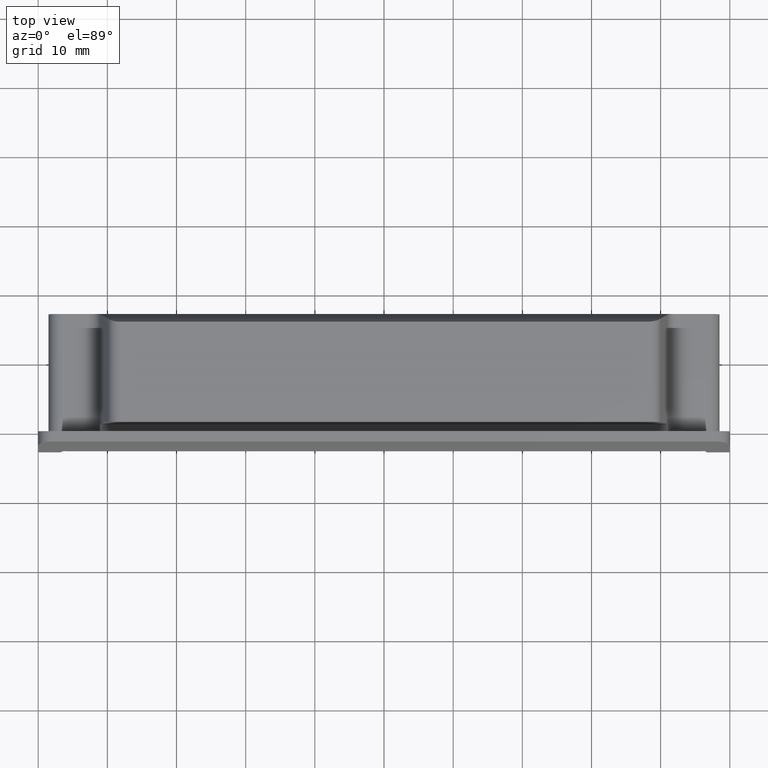
[diagram: clean part render]
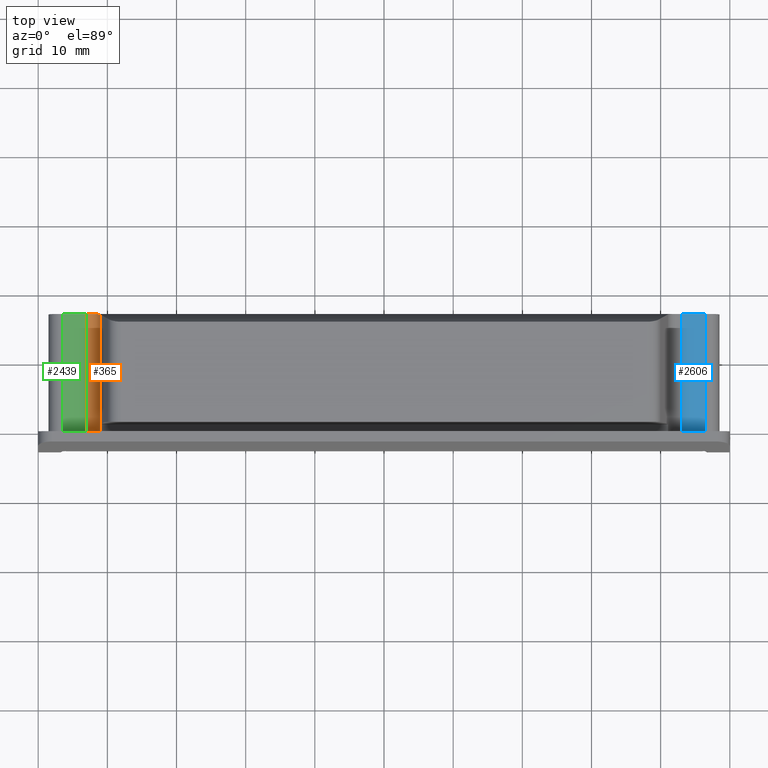
[diagram: same view with three faces highlighted in distinct colors, each labeled with its STEP entity id]
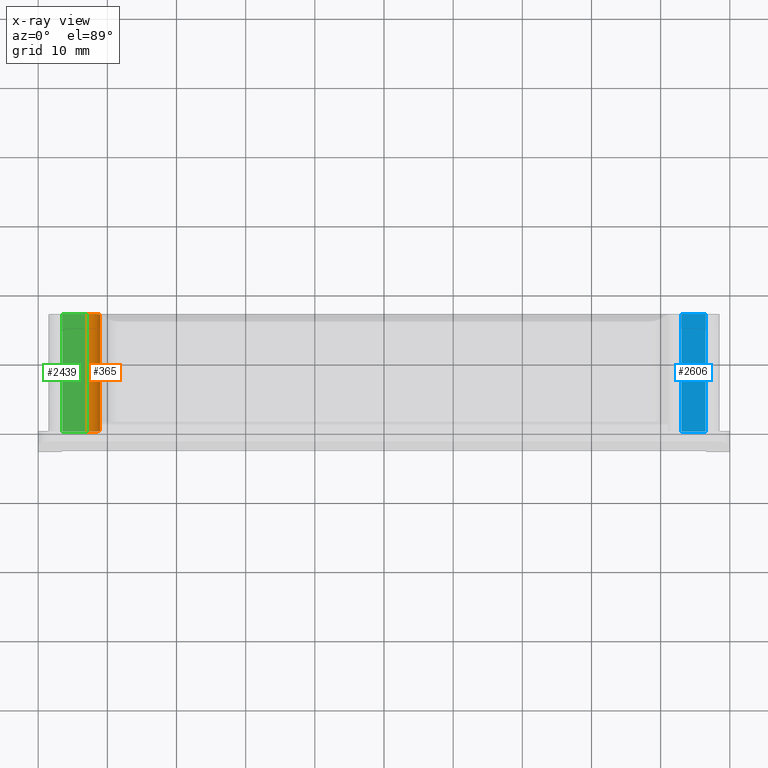
[diagram: x-ray of the same camera — body ghosted, the three highlighted faces saturated]
A machine part, top view with three faces highlighted in distinct colors.
The next image is the same camera in x-ray (body ghosted, the three faces saturated) — at least one of them is partly hidden behind the body in this view.
Their STEP definitions:

[orange] entity #365 — the highlighted cylindrical surface (edge-blend (fillet) strip) has radius 2 mm, axis along (0, 1, 0).
#29 = CARTESIAN_POINT ( 'NONE',  ( -42.76305940867310800, 16.99591752676730000, -6.499999999999999100 ) ) ;
#104 = DIRECTION ( 'NONE',  ( 0.0000000000000000000, 1.000000000000000000, 0.0000000000000000000 ) ) ;
#220 = ORIENTED_EDGE ( 'NONE', *, *, #2497, .F. ) ;
#267 = CARTESIAN_POINT ( 'NONE',  ( -42.97714892442090200, 1000.000000000000000, -4.500000000000000000 ) ) ;
#297 = ORIENTED_EDGE ( 'NONE', *, *, #846, .F. ) ;
#365 = ADVANCED_FACE ( 'NONE', ( #553 ), #2077, .F. ) ;
#368 = CARTESIAN_POINT ( 'NONE',  ( -42.97714892442090200, 0.0000000000000000000, -6.500000000000000000 ) ) ;
#463 = CARTESIAN_POINT ( 'NONE',  ( -42.14922429268468600, 16.99195792532859900, -6.333054762345854600 ) ) ;
#553 = FACE_OUTER_BOUND ( 'NONE', #1039, .T. ) ;
#661 = CARTESIAN_POINT ( 'NONE',  ( -41.44698264328089000, 16.97413980235233300, -5.856360238779716500 ) ) ;
#689 = EDGE_CURVE ( 'NONE', #1470, #1654, #2696, .T. ) ;
#719 = CARTESIAN_POINT ( 'NONE',  ( -42.97714892442095200, 16.99591752676730000, -6.500000000000000000 ) ) ;
#770 = VERTEX_POINT ( 'NONE', #719 ) ;
#794 = CARTESIAN_POINT ( 'NONE',  ( -41.06559079455290400, 0.0000000000000000000, -5.088171332296550300 ) ) ;
#846 = EDGE_CURVE ( 'NONE', #1027, #1470, #867, .T. ) ;
#858 = DIRECTION ( 'NONE',  ( 0.0000000000000000000, 0.0000000000000000000, 1.000000000000000000 ) ) ;
#867 = LINE ( 'NONE', #794, #1288 ) ;
#869 = CARTESIAN_POINT ( 'NONE',  ( -41.06559079455280400, 16.91739110543665300, -5.088171332296570700 ) ) ;
#940 = DIRECTION ( 'NONE',  ( -0.0000000000000000000, 1.000000000000000000, -0.0000000000000000000 ) ) ;
#1027 = VERTEX_POINT ( 'NONE', #1744 ) ;
#1039 = EDGE_LOOP ( 'NONE', ( #220, #1323, #1893, #297 ) ) ;
#1185 = CARTESIAN_POINT ( 'NONE',  ( -41.06559079455290400, 0.0000000000000000000, -5.088171332296550300 ) ) ;
#1237 = B_SPLINE_CURVE_WITH_KNOTS ( 'NONE', 3,
 ( #1939, #29, #1696, #463, #1916, #661, #2123, #869 ),
 .UNSPECIFIED., .F., .F.,
 ( 4, 2, 2, 4 ),
 ( 4.919554663809511500E-017, 0.0006331561369566367400, 0.001266312273913224300, 0.002532624547826399100 ),
 .UNSPECIFIED. ) ;
#1288 = VECTOR ( 'NONE', #2230, 1000.000000000000000 ) ;
#1323 = ORIENTED_EDGE ( 'NONE', *, *, #2540, .F. ) ;
#1344 = LINE ( 'NONE', #2197, #2469 ) ;
#1470 = VERTEX_POINT ( 'NONE', #1185 ) ;
#1505 = DIRECTION ( 'NONE',  ( 0.0000000000000000000, 0.0000000000000000000, 1.000000000000000000 ) ) ;
#1540 = AXIS2_PLACEMENT_3D ( 'NONE', #2192, #104, #1505 ) ;
#1654 = VERTEX_POINT ( 'NONE', #368 ) ;
#1696 = CARTESIAN_POINT ( 'NONE',  ( -42.55467710219135600, 16.99532353790957000, -6.466485829345439000 ) ) ;
#1744 = CARTESIAN_POINT ( 'NONE',  ( -41.06559079455280400, 16.91739110543665300, -5.088171332296570700 ) ) ;
#1893 = ORIENTED_EDGE ( 'NONE', *, *, #689, .F. ) ;
#1897 = AXIS2_PLACEMENT_3D ( 'NONE', #267, #2491, #858 ) ;
#1916 = CARTESIAN_POINT ( 'NONE',  ( -41.96059040028066500, 16.98922125024468600, -6.235479545635127100 ) ) ;
#1939 = CARTESIAN_POINT ( 'NONE',  ( -42.97714892442095200, 16.99591752676730000, -6.500000000000000000 ) ) ;
#2077 = CYLINDRICAL_SURFACE ( 'NONE', #1897, 2.000000000000000000 ) ;
#2123 = CARTESIAN_POINT ( 'NONE',  ( -41.19103741495373300, 16.95456214014837900, -5.495873125845988300 ) ) ;
#2192 = CARTESIAN_POINT ( 'NONE',  ( -42.97714892442090200, 0.0000000000000000000, -4.500000000000000000 ) ) ;
#2197 = CARTESIAN_POINT ( 'NONE',  ( -42.97714892442090200, 16.99591752676754900, -6.500000000000000000 ) ) ;
#2230 = DIRECTION ( 'NONE',  ( 0.0000000000000000000, -1.000000000000000000, 0.0000000000000000000 ) ) ;
#2469 = VECTOR ( 'NONE', #940, 1000.000000000000000 ) ;
#2491 = DIRECTION ( 'NONE',  ( 0.0000000000000000000, 1.000000000000000000, 0.0000000000000000000 ) ) ;
#2497 = EDGE_CURVE ( 'NONE', #770, #1027, #1237, .T. ) ;
#2540 = EDGE_CURVE ( 'NONE', #1654, #770, #1344, .T. ) ;
#2696 = CIRCLE ( 'NONE', #1540, 2.000000000000000000 ) ;

[blue] entity #2606 — the highlighted planar face has unit normal (0, 0, -1).
#5 = DIRECTION ( 'NONE',  ( 1.000000000000000000, -0.0000000000000000000, -0.0000000000000000000 ) ) ;
#84 = AXIS2_PLACEMENT_3D ( 'NONE', #1813, #1443, #201 ) ;
#126 = EDGE_CURVE ( 'NONE', #208, #1018, #1988, .T. ) ;
#139 = LINE ( 'NONE', #1245, #2233 ) ;
#201 = DIRECTION ( 'NONE',  ( 1.000000000000000000, -2.449212707644755000E-016, 0.0000000000000000000 ) ) ;
#208 = VERTEX_POINT ( 'NONE', #889 ) ;
#243 = DIRECTION ( 'NONE',  ( -2.449212707644755000E-016, -1.000000000000000000, 0.0000000000000000000 ) ) ;
#352 = ORIENTED_EDGE ( 'NONE', *, *, #1433, .T. ) ;
#599 = FACE_OUTER_BOUND ( 'NONE', #1474, .T. ) ;
#701 = VECTOR ( 'NONE', #997, 1000.000000000000000 ) ;
#767 = PLANE ( 'NONE',  #84 ) ;
#787 = ORIENTED_EDGE ( 'NONE', *, *, #1569, .F. ) ;
#889 = CARTESIAN_POINT ( 'NONE',  ( 42.97714892442095200, 16.99591752676730000, -6.500000000000000000 ) ) ;
#997 = DIRECTION ( 'NONE',  ( -0.0000000000000000000, 1.000000000000000000, -0.0000000000000000000 ) ) ;
#1018 = VERTEX_POINT ( 'NONE', #1405 ) ;
#1106 = ORIENTED_EDGE ( 'NONE', *, *, #126, .T. ) ;
#1245 = CARTESIAN_POINT ( 'NONE',  ( 951.5000000000000000, 16.99591752676730000, -6.500000000000000000 ) ) ;
#1290 = VERTEX_POINT ( 'NONE', #2678 ) ;
#1405 = CARTESIAN_POINT ( 'NONE',  ( 42.97714892442090200, -1.052601792840328000E-014, -6.500000000000000000 ) ) ;
#1418 = DIRECTION ( 'NONE',  ( -1.000000000000000000, 2.449212707644755000E-016, 0.0000000000000000000 ) ) ;
#1425 = VECTOR ( 'NONE', #243, 1000.000000000000000 ) ;
#1433 = EDGE_CURVE ( 'NONE', #2283, #1290, #2301, .T. ) ;
#1443 = DIRECTION ( 'NONE',  ( 0.0000000000000000000, 0.0000000000000000000, -1.000000000000000000 ) ) ;
#1474 = EDGE_LOOP ( 'NONE', ( #787, #352, #2506, #1106 ) ) ;
#1569 = EDGE_CURVE ( 'NONE', #2283, #1018, #2475, .T. ) ;
#1623 = CARTESIAN_POINT ( 'NONE',  ( 46.50000000000000000, 16.99591752676730000, -6.500000000000000000 ) ) ;
#1627 = CARTESIAN_POINT ( 'NONE',  ( 48.50000000000000000, -1.187868163207705900E-014, -6.500000000000000000 ) ) ;
#1813 = CARTESIAN_POINT ( 'NONE',  ( 48.50000000000000000, 1000.000000000000000, -6.500000000000000000 ) ) ;
#1846 = VECTOR ( 'NONE', #1418, 1000.000000000000000 ) ;
#1890 = CARTESIAN_POINT ( 'NONE',  ( 42.97714892442090200, 0.0000000000000000000, -6.500000000000000000 ) ) ;
#1988 = LINE ( 'NONE', #1890, #1425 ) ;
#2233 = VECTOR ( 'NONE', #5, 1000.000000000000000 ) ;
#2283 = VERTEX_POINT ( 'NONE', #2484 ) ;
#2301 = LINE ( 'NONE', #1623, #701 ) ;
#2393 = EDGE_CURVE ( 'NONE', #208, #1290, #139, .T. ) ;
#2475 = LINE ( 'NONE', #1627, #1846 ) ;
#2484 = CARTESIAN_POINT ( 'NONE',  ( 46.50000000000000000, -1.138883909054809900E-014, -6.500000000000000000 ) ) ;
#2506 = ORIENTED_EDGE ( 'NONE', *, *, #2393, .F. ) ;
#2606 = ADVANCED_FACE ( 'NONE', ( #599 ), #767, .F. ) ;
#2678 = CARTESIAN_POINT ( 'NONE',  ( 46.50000000000000000, 16.99591752676730000, -6.500000000000000000 ) ) ;

[green] entity #2439 — the highlighted planar face has unit normal (0, 0, -1).
#50 = VERTEX_POINT ( 'NONE', #2322 ) ;
#76 = ORIENTED_EDGE ( 'NONE', *, *, #2540, .T. ) ;
#214 = VECTOR ( 'NONE', #1113, 1000.000000000000000 ) ;
#235 = DIRECTION ( 'NONE',  ( 0.0000000000000000000, 0.0000000000000000000, -1.000000000000000000 ) ) ;
#368 = CARTESIAN_POINT ( 'NONE',  ( -42.97714892442090200, 0.0000000000000000000, -6.500000000000000000 ) ) ;
#418 = LINE ( 'NONE', #1736, #2578 ) ;
#531 = CARTESIAN_POINT ( 'NONE',  ( 951.5000000000000000, 16.99591752676730000, -6.500000000000000000 ) ) ;
#563 = VERTEX_POINT ( 'NONE', #665 ) ;
#665 = CARTESIAN_POINT ( 'NONE',  ( -46.50000000000000000, 16.99591752676730000, -6.500000000000000000 ) ) ;
#694 = DIRECTION ( 'NONE',  ( 1.000000000000000000, 0.0000000000000000000, 0.0000000000000000000 ) ) ;
#719 = CARTESIAN_POINT ( 'NONE',  ( -42.97714892442095200, 16.99591752676730000, -6.500000000000000000 ) ) ;
#770 = VERTEX_POINT ( 'NONE', #719 ) ;
#782 = DIRECTION ( 'NONE',  ( 0.0000000000000000000, -1.000000000000000000, 0.0000000000000000000 ) ) ;
#827 = LINE ( 'NONE', #2021, #1878 ) ;
#940 = DIRECTION ( 'NONE',  ( -0.0000000000000000000, 1.000000000000000000, -0.0000000000000000000 ) ) ;
#1113 = DIRECTION ( 'NONE',  ( 1.000000000000000000, -0.0000000000000000000, -0.0000000000000000000 ) ) ;
#1119 = FACE_OUTER_BOUND ( 'NONE', #2008, .T. ) ;
#1221 = EDGE_CURVE ( 'NONE', #563, #770, #2582, .T. ) ;
#1258 = EDGE_CURVE ( 'NONE', #50, #1654, #418, .T. ) ;
#1332 = ORIENTED_EDGE ( 'NONE', *, *, #1352, .T. ) ;
#1344 = LINE ( 'NONE', #2197, #2469 ) ;
#1352 = EDGE_CURVE ( 'NONE', #563, #50, #827, .T. ) ;
#1471 = PLANE ( 'NONE',  #1870 ) ;
#1654 = VERTEX_POINT ( 'NONE', #368 ) ;
#1689 = DIRECTION ( 'NONE',  ( -1.000000000000000000, 0.0000000000000000000, 0.0000000000000000000 ) ) ;
#1736 = CARTESIAN_POINT ( 'NONE',  ( -48.50000000000000000, 0.0000000000000000000, -6.500000000000000000 ) ) ;
#1870 = AXIS2_PLACEMENT_3D ( 'NONE', #2319, #235, #1689 ) ;
#1878 = VECTOR ( 'NONE', #782, 1000.000000000000000 ) ;
#2008 = EDGE_LOOP ( 'NONE', ( #2044, #76, #2459, #1332 ) ) ;
#2021 = CARTESIAN_POINT ( 'NONE',  ( -46.50000000000000000, 1000.000000000000000, -6.500000000000000000 ) ) ;
#2044 = ORIENTED_EDGE ( 'NONE', *, *, #1258, .T. ) ;
#2197 = CARTESIAN_POINT ( 'NONE',  ( -42.97714892442090200, 16.99591752676754900, -6.500000000000000000 ) ) ;
#2319 = CARTESIAN_POINT ( 'NONE',  ( -48.50000000000000000, 1000.000000000000000, -6.500000000000000000 ) ) ;
#2322 = CARTESIAN_POINT ( 'NONE',  ( -46.50000000000000000, 0.0000000000000000000, -6.500000000000000000 ) ) ;
#2439 = ADVANCED_FACE ( 'NONE', ( #1119 ), #1471, .F. ) ;
#2459 = ORIENTED_EDGE ( 'NONE', *, *, #1221, .F. ) ;
#2469 = VECTOR ( 'NONE', #940, 1000.000000000000000 ) ;
#2540 = EDGE_CURVE ( 'NONE', #1654, #770, #1344, .T. ) ;
#2578 = VECTOR ( 'NONE', #694, 1000.000000000000000 ) ;
#2582 = LINE ( 'NONE', #531, #214 ) ;